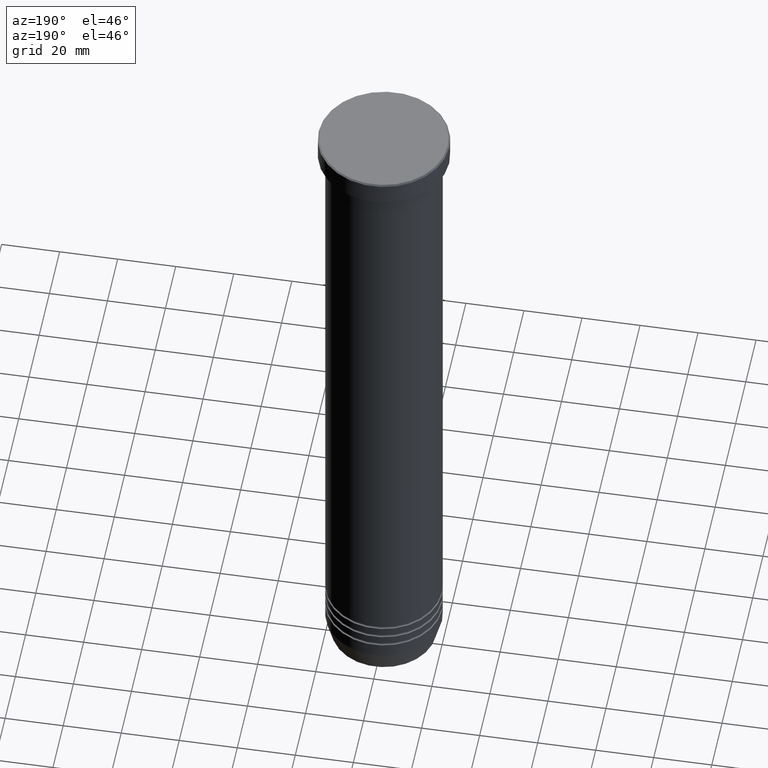
[diagram: clean part render]
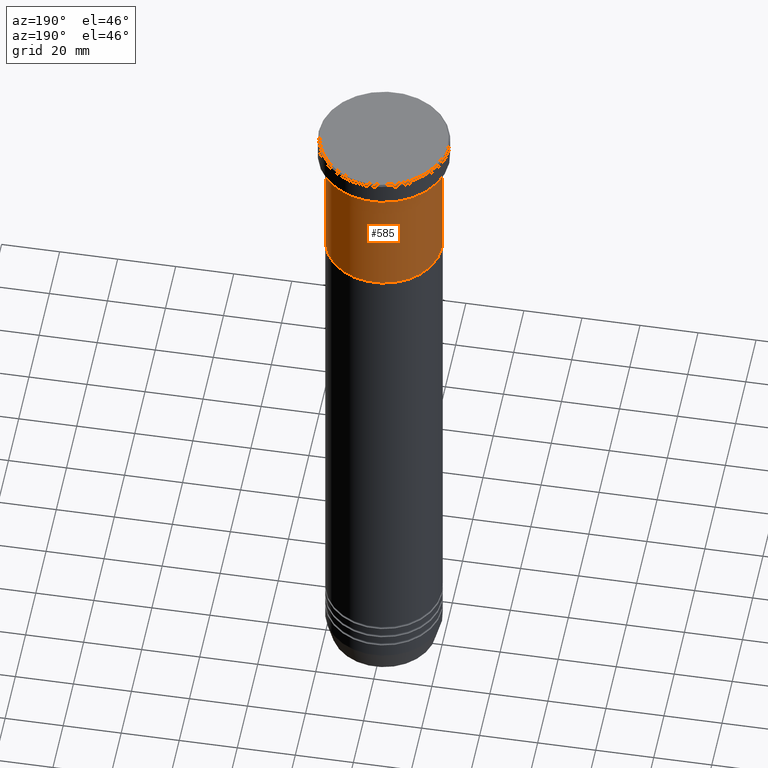
[diagram: same view with one face highlighted and labeled with its STEP entity id]
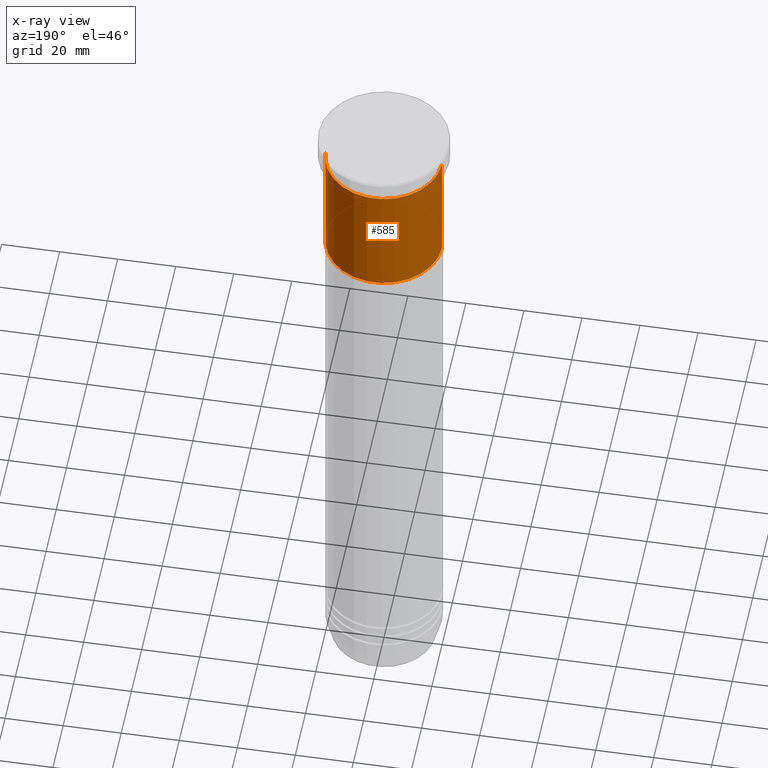
[diagram: x-ray of the same camera — body ghosted, the highlighted face saturated]
A machine part, auxiliary view. The second image highlights one B-rep face of the part: STEP entity #585.
The next image is the same camera in x-ray: the body ghosted, the highlighted face saturated — about 0% of this face is hidden behind the body in this view.
In plain terms, the highlighted cylindrical surface (partial cylindrical patch) has radius 20 mm, axis along (-0, -0, 1).
Its self-contained STEP definition (entity closure, byte-faithful):
#96 = VERTEX_POINT ( 'NONE', #333 ) ;
#156 = CARTESIAN_POINT ( 'NONE',  ( 20.00000000000000000, 0.000000000000000000, -50.00000000000000000 ) ) ;
#237 = VERTEX_POINT ( 'NONE', #602 ) ;
#289 = ORIENTED_EDGE ( 'NONE', *, *, #938, .F. ) ;
#295 = EDGE_CURVE ( 'NONE', #416, #96, #904, .T. ) ;
#301 = CIRCLE ( 'NONE', #666, 20.00000000000000000 ) ;
#318 = CARTESIAN_POINT ( 'NONE',  ( -20.00000000000000000, 2.449293598294706513E-15, 0.000000000000000000 ) ) ;
#323 = AXIS2_PLACEMENT_3D ( 'NONE', #689, #549, #870 ) ;
#326 = DIRECTION ( 'NONE',  ( 1.000000000000000000, 0.000000000000000000, 0.000000000000000000 ) ) ;
#333 = CARTESIAN_POINT ( 'NONE',  ( 20.00000000000000000, 0.000000000000000000, -9.000000000000001776 ) ) ;
#412 = ORIENTED_EDGE ( 'NONE', *, *, #295, .F. ) ;
#416 = VERTEX_POINT ( 'NONE', #156 ) ;
#418 = ORIENTED_EDGE ( 'NONE', *, *, #617, .T. ) ;
#420 = AXIS2_PLACEMENT_3D ( 'NONE', #766, #607, #326 ) ;
#424 = EDGE_CURVE ( 'NONE', #1020, #237, #647, .T. ) ;
#440 = DIRECTION ( 'NONE',  ( -0.000000000000000000, -0.000000000000000000, 1.000000000000000000 ) ) ;
#536 = VECTOR ( 'NONE', #800, 1000.000000000000000 ) ;
#549 = DIRECTION ( 'NONE',  ( -0.000000000000000000, -0.000000000000000000, 1.000000000000000000 ) ) ;
#566 = EDGE_LOOP ( 'NONE', ( #418, #594, #289, #412 ) ) ;
#577 = FACE_OUTER_BOUND ( 'NONE', #566, .T. ) ;
#585 = ADVANCED_FACE ( 'NONE', ( #577 ), #923, .T. ) ;
#594 = ORIENTED_EDGE ( 'NONE', *, *, #424, .T. ) ;
#602 = CARTESIAN_POINT ( 'NONE',  ( -20.00000000000000000, 2.449293598294706513E-15, -9.000000000000001776 ) ) ;
#607 = DIRECTION ( 'NONE',  ( -0.000000000000000000, -0.000000000000000000, 1.000000000000000000 ) ) ;
#617 = EDGE_CURVE ( 'NONE', #416, #1020, #301, .T. ) ;
#628 = VECTOR ( 'NONE', #440, 1000.000000000000000 ) ;
#647 = LINE ( 'NONE', #318, #536 ) ;
#666 = AXIS2_PLACEMENT_3D ( 'NONE', #1048, #765, #1000 ) ;
#677 = CARTESIAN_POINT ( 'NONE',  ( 20.00000000000000000, 0.000000000000000000, 0.000000000000000000 ) ) ;
#689 = CARTESIAN_POINT ( 'NONE',  ( 0.000000000000000000, 0.000000000000000000, -9.000000000000001776 ) ) ;
#765 = DIRECTION ( 'NONE',  ( -0.000000000000000000, -0.000000000000000000, 1.000000000000000000 ) ) ;
#766 = CARTESIAN_POINT ( 'NONE',  ( 0.000000000000000000, 0.000000000000000000, 0.000000000000000000 ) ) ;
#782 = CARTESIAN_POINT ( 'NONE',  ( -20.00000000000000000, 2.449293598294706513E-15, -50.00000000000000000 ) ) ;
#800 = DIRECTION ( 'NONE',  ( -0.000000000000000000, -0.000000000000000000, 1.000000000000000000 ) ) ;
#849 = CIRCLE ( 'NONE', #323, 20.00000000000000000 ) ;
#870 = DIRECTION ( 'NONE',  ( 1.000000000000000000, 0.000000000000000000, 0.000000000000000000 ) ) ;
#904 = LINE ( 'NONE', #677, #628 ) ;
#923 = CYLINDRICAL_SURFACE ( 'NONE', #420, 20.00000000000000000 ) ;
#938 = EDGE_CURVE ( 'NONE', #96, #237, #849, .T. ) ;
#1000 = DIRECTION ( 'NONE',  ( 1.000000000000000000, 0.000000000000000000, 0.000000000000000000 ) ) ;
#1020 = VERTEX_POINT ( 'NONE', #782 ) ;
#1048 = CARTESIAN_POINT ( 'NONE',  ( 0.000000000000000000, 0.000000000000000000, -50.00000000000000000 ) ) ;